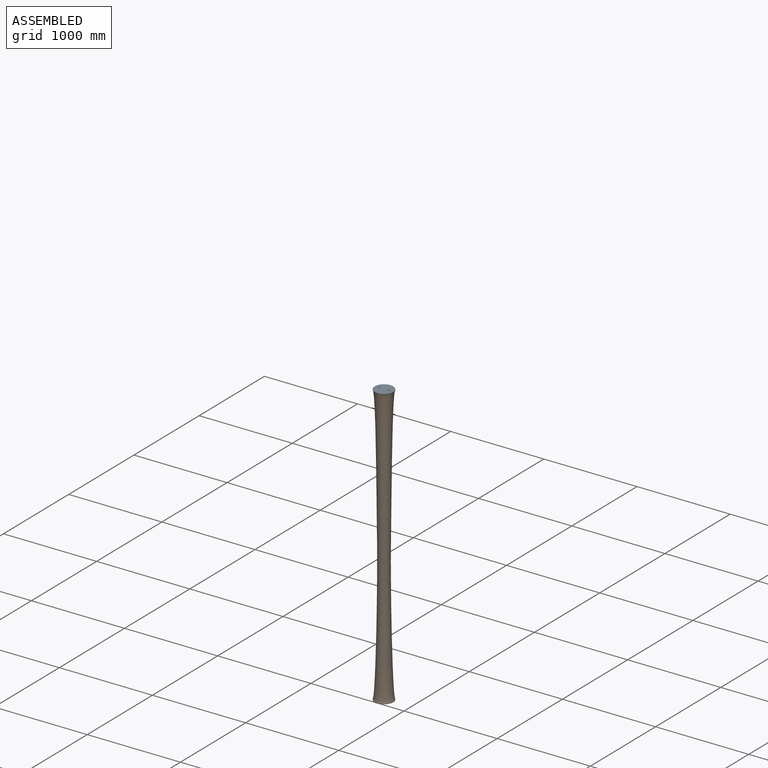
[diagram: assembled view]
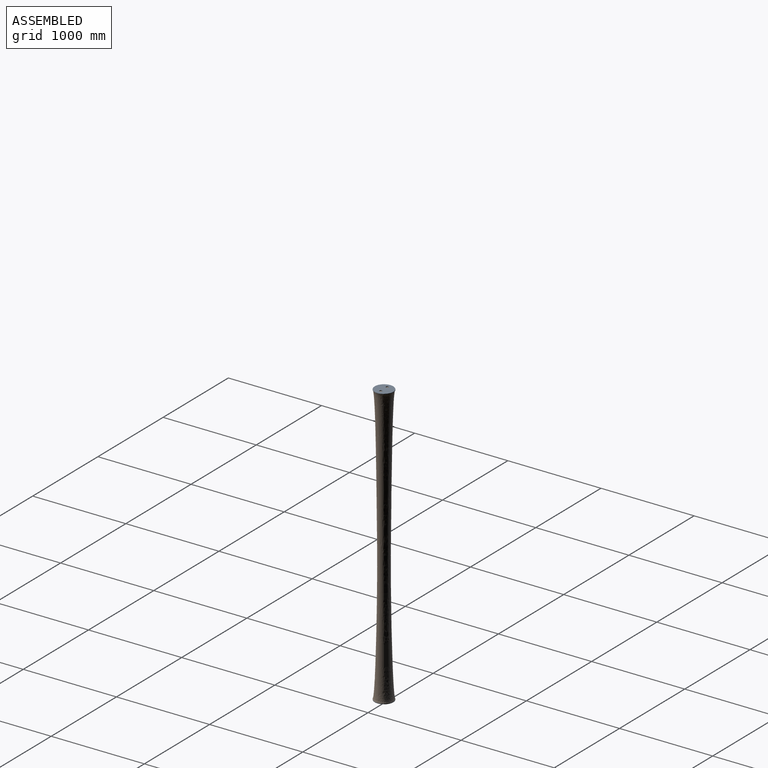
[diagram: assembled view, second angle]
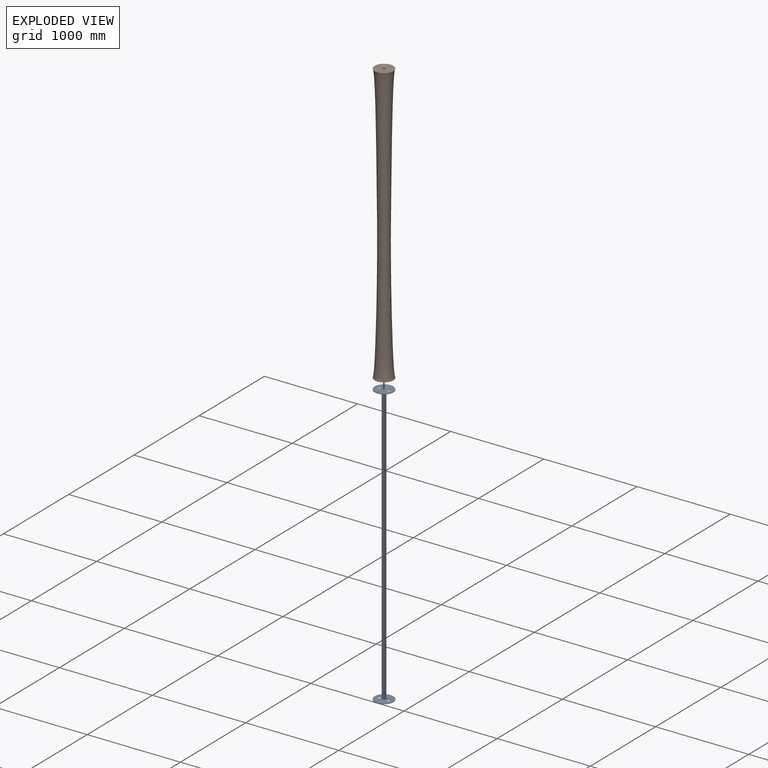
[diagram: exploded view]
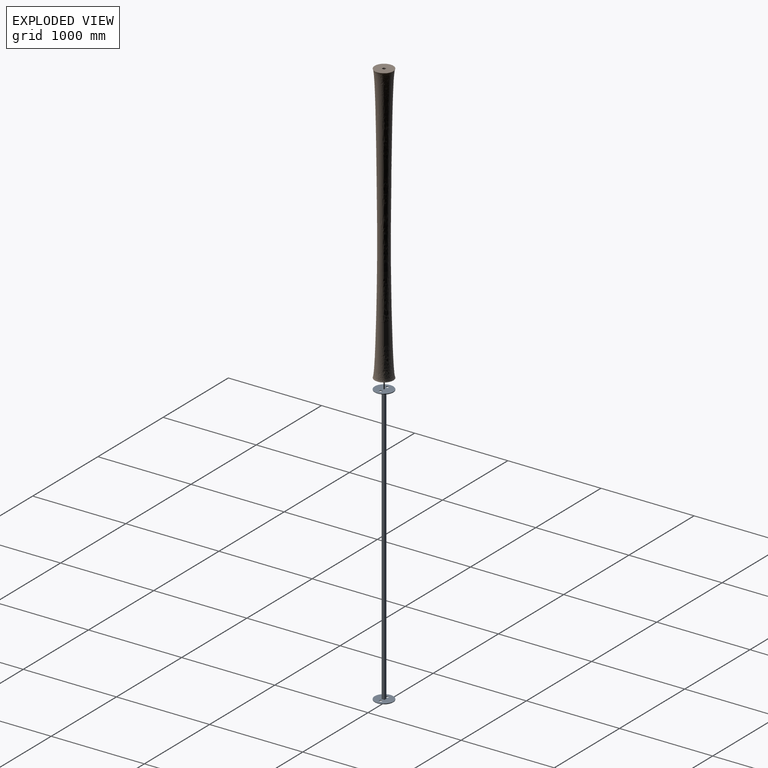
[diagram: exploded view, second angle]
ASSEMBLY  parts=2 mates=2
PART A: 14 faces, bbox 200x200x3012 mm
  f0: plane 200x200mm, normal (0,0,-1), area 29102.2mm2, adj f1,f2,f3,f5,f6,f7,f8
  f1: cylinder r=15mm len=30mm, axis (0,0,-1), area 565.5mm2, adj f0,f4
  f2: cylinder r=15mm len=30mm, axis (0,0,-1), area 565.5mm2, adj f0,f4
  f3: cylinder r=100mm len=200mm, axis (0,0,-1), area 3769.9mm2, adj f0,f4
  f4: plane 200x200mm, normal (0,0,1), area 30002.2mm2, adj f1,f2,f3
  f5: plane 3000x30mm, normal (1,0,0), area 90000mm2, adj f0,f6,f7,f9
  f6: plane 3000x30mm, normal (0,-1,0), area 90000mm2, adj f0,f5,f8,f9
  f7: plane 3000x30mm, normal (0,1,0), area 90000mm2, adj f0,f5,f8,f9
  f8: plane 3000x30mm, normal (-1,0,0), area 90000mm2, adj f0,f6,f7,f9
  f9: plane 200x200mm, normal (0,0,1), area 29102.2mm2, adj f5,f6,f7,f8,f10,f11,f12
  f10: cylinder r=15mm len=30mm, axis (0,0,1), area 565.5mm2, adj f9,f13
  f11: cylinder r=15mm len=30mm, axis (0,0,1), area 565.5mm2, adj f9,f13
  f12: cylinder r=100mm len=200mm, axis (0,0,1), area 3769.9mm2, adj f9,f13
  f13: plane 200x200mm, normal (0,0,-1), area 30002.2mm2, adj f10,f11,f12
PART B: 12 faces, bbox 202x202x3002 mm
  f0: bspline ~1500x200mm, area 661392.7mm2, adj f5,f6
  f1: bspline ~200x200mm, area 628.3mm2, adj f4,f5
  f2: bspline ~200x200mm, area 628.3mm2, adj f3,f11
  f3: offset ~1502x202mm, area 671101.3mm2, adj f2,f4
  f4: offset ~1502x202mm, area 651277.7mm2, adj f1,f3
  f5: bspline ~1500x200mm, area 642831.8mm2, adj f0,f1
  f6: plane 197.02x197mm, normal (0,0,-1), area 29499.2mm2, adj f0,f7,f8,f9,f10
  f7: plane 30x1mm, normal (-1,0,0), area 30mm2, adj f6,f8,f10,f11
  f8: plane 30x1mm, normal (0,1,0), area 30mm2, adj f6,f7,f9,f11
  f9: plane 30x1mm, normal (1,0,0), area 30mm2, adj f6,f8,f10,f11
  f10: plane 30x1mm, normal (0,-1,0), area 30mm2, adj f6,f7,f9,f11
  f11: plane 200x200mm, normal (0,0,1), area 30513.8mm2, adj f2,f7,f8,f9,f10
PLACE A t=(-225,15,0)mm
PLACE B t=(-225,15,0)mm
MATE revolute B.f11 <-> A.f3  axis (0,0,1) through (-225,15,1500)mm
MATE planar A.f3 <-> B.f11  axis (0,0,-1) through (-225,15,1500)mm
